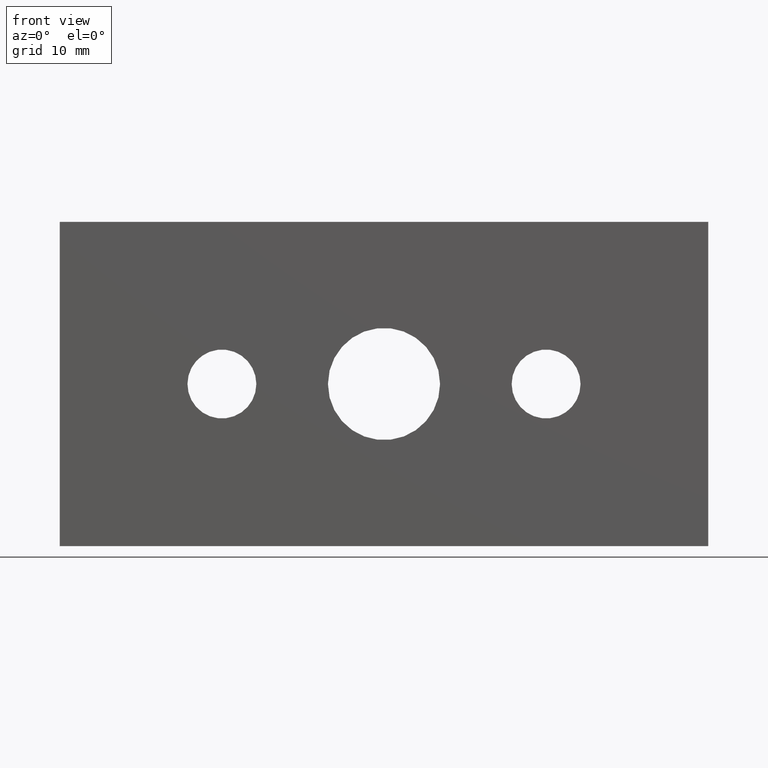
[diagram: clean part render]
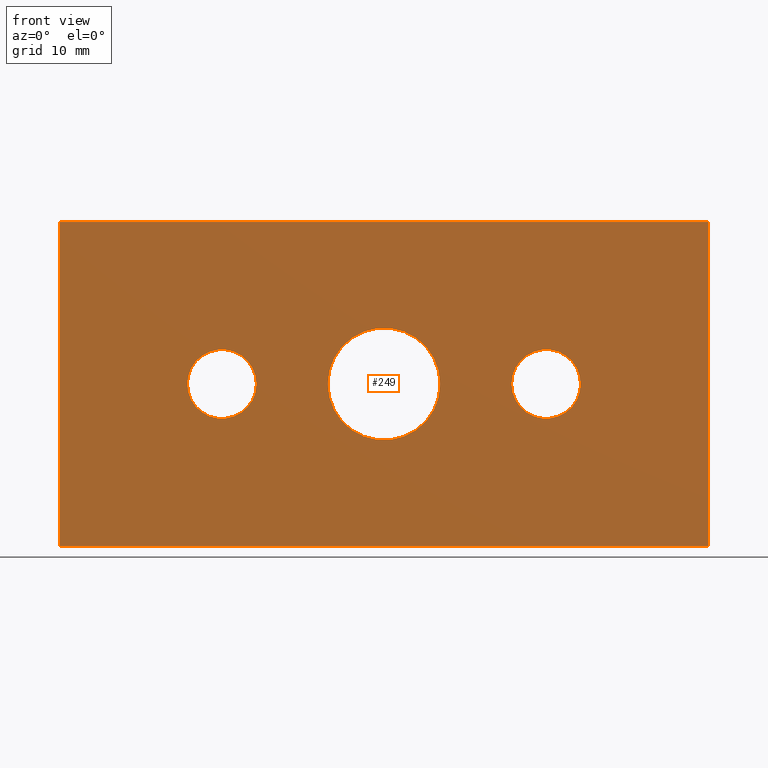
[diagram: same view with one face highlighted and labeled with its STEP entity id]
A machine part, front view. The second image highlights one B-rep face of the part: STEP entity #249.
In plain terms, the highlighted planar face has unit normal (0, 1, 0).
Its self-contained STEP definition (entity closure, byte-faithful):
#20=LINE('',#420,#37);
#24=LINE('',#428,#41);
#27=LINE('',#434,#44);
#30=LINE('',#439,#47);
#37=VECTOR('',#352,10.);
#41=VECTOR('',#358,10.);
#44=VECTOR('',#363,10.);
#47=VECTOR('',#368,10.);
#56=FACE_BOUND('',#89,.T.);
#57=FACE_BOUND('',#90,.T.);
#58=FACE_BOUND('',#91,.T.);
#73=FACE_OUTER_BOUND('',#88,.T.);
#88=EDGE_LOOP('',(#213,#214,#215,#216));
#89=EDGE_LOOP('',(#217));
#90=EDGE_LOOP('',(#218));
#91=EDGE_LOOP('',(#219));
#101=CIRCLE('',#279,4.25);
#107=CIRCLE('',#288,4.25);
#110=CIRCLE('',#292,6.9175);
#116=VERTEX_POINT('',#389);
#122=VERTEX_POINT('',#406);
#125=VERTEX_POINT('',#414);
#126=VERTEX_POINT('',#418);
#127=VERTEX_POINT('',#419);
#130=VERTEX_POINT('',#427);
#132=VERTEX_POINT('',#433);
#141=EDGE_CURVE('',#116,#116,#101,.T.);
#149=EDGE_CURVE('',#122,#122,#107,.T.);
#153=EDGE_CURVE('',#125,#125,#110,.T.);
#154=EDGE_CURVE('',#126,#127,#20,.T.);
#158=EDGE_CURVE('',#127,#130,#24,.T.);
#161=EDGE_CURVE('',#130,#132,#27,.T.);
#164=EDGE_CURVE('',#132,#126,#30,.T.);
#213=ORIENTED_EDGE('',*,*,#164,.T.);
#214=ORIENTED_EDGE('',*,*,#154,.T.);
#215=ORIENTED_EDGE('',*,*,#158,.T.);
#216=ORIENTED_EDGE('',*,*,#161,.T.);
#217=ORIENTED_EDGE('',*,*,#141,.T.);
#218=ORIENTED_EDGE('',*,*,#149,.T.);
#219=ORIENTED_EDGE('',*,*,#153,.T.);
#236=PLANE('',#297);
#249=ADVANCED_FACE('',(#73,#56,#57,#58),#236,.F.);
#279=AXIS2_PLACEMENT_3D('',#391,#319,#320);
#288=AXIS2_PLACEMENT_3D('',#408,#339,#340);
#292=AXIS2_PLACEMENT_3D('',#416,#348,#349);
#297=AXIS2_PLACEMENT_3D('',#441,#370,#371);
#319=DIRECTION('center_axis',(0.,1.,0.));
#320=DIRECTION('ref_axis',(1.,0.,0.));
#339=DIRECTION('center_axis',(0.,1.,0.));
#340=DIRECTION('ref_axis',(1.,0.,0.));
#348=DIRECTION('center_axis',(0.,1.,0.));
#349=DIRECTION('ref_axis',(1.,0.,0.));
#352=DIRECTION('',(0.,0.,-1.));
#358=DIRECTION('',(1.,0.,0.));
#363=DIRECTION('',(0.,0.,1.));
#368=DIRECTION('',(-1.,0.,0.));
#370=DIRECTION('center_axis',(0.,1.,0.));
#371=DIRECTION('ref_axis',(0.,0.,1.));
#389=CARTESIAN_POINT('',(-24.25,0.,5.20474889637625E-16));
#391=CARTESIAN_POINT('Origin',(-20.,0.,0.));
#406=CARTESIAN_POINT('',(15.75,0.,5.20474889637625E-16));
#408=CARTESIAN_POINT('Origin',(20.,0.,0.));
#414=CARTESIAN_POINT('',(-6.9175,0.,8.47149423310182E-16));
#416=CARTESIAN_POINT('Origin',(0.,0.,0.));
#418=CARTESIAN_POINT('',(-40.,0.,20.));
#419=CARTESIAN_POINT('',(-40.,0.,-20.));
#420=CARTESIAN_POINT('',(-40.,0.,20.));
#427=CARTESIAN_POINT('',(40.,0.,-20.));
#428=CARTESIAN_POINT('',(-40.,0.,-20.));
#433=CARTESIAN_POINT('',(40.,0.,20.));
#434=CARTESIAN_POINT('',(40.,0.,-20.));
#439=CARTESIAN_POINT('',(40.,0.,20.));
#441=CARTESIAN_POINT('Origin',(0.,0.,0.));